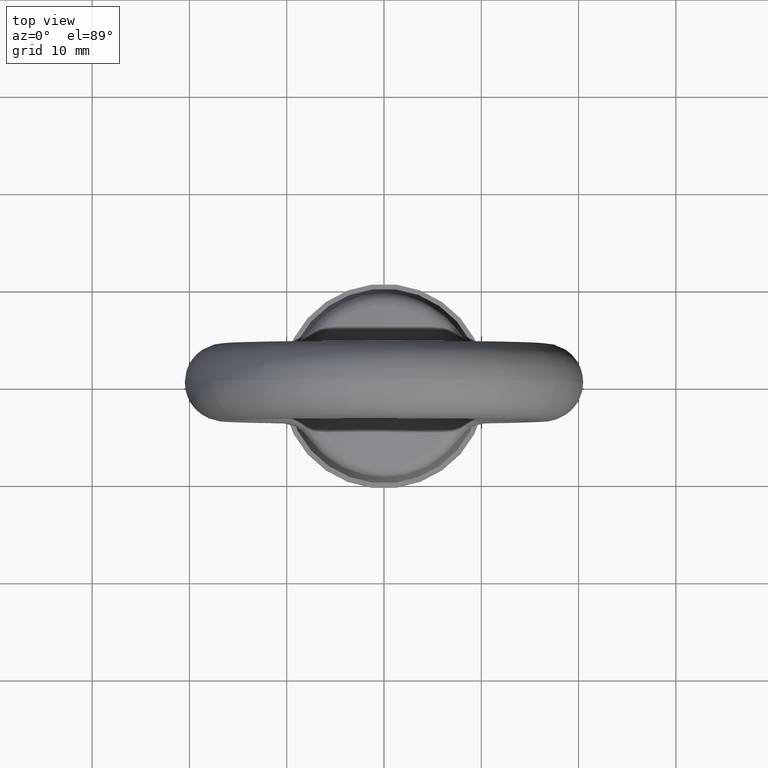
[diagram: clean part render]
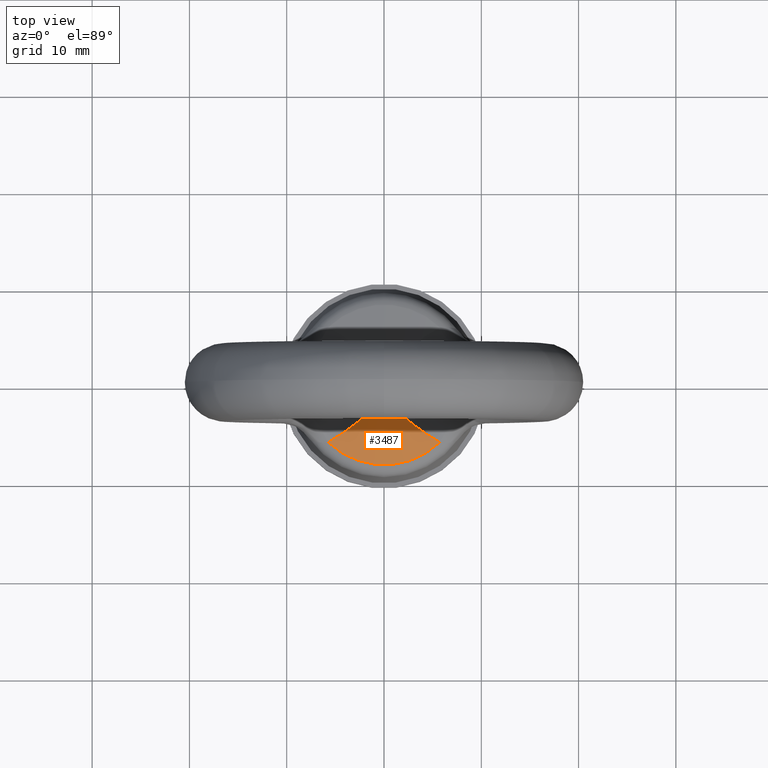
[diagram: same view with one face highlighted and labeled with its STEP entity id]
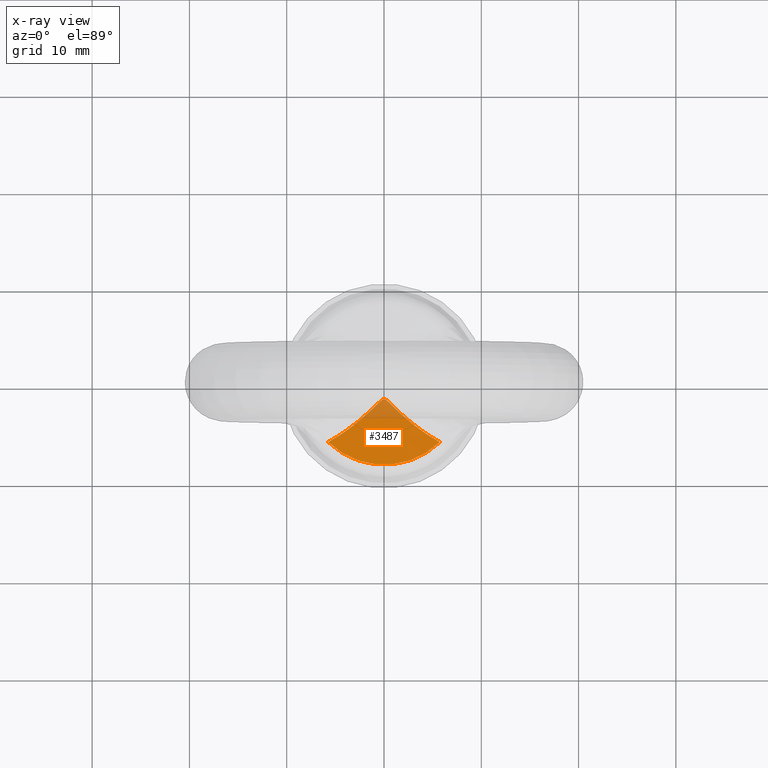
[diagram: x-ray of the same camera — body ghosted, the highlighted face saturated]
A machine part, top view. The second image highlights one B-rep face of the part: STEP entity #3487.
The next image is the same camera in x-ray: the body ghosted, the highlighted face saturated — about 11% of this face is hidden behind the body in this view.
In plain terms, the highlighted conical surface has half-angle 80.922 deg.
Its self-contained STEP definition (entity closure, byte-faithful):
#2501 = DIRECTION ( 'NONE',  ( 1.000000000000000000, 0.0000000000000000000, 0.0000000000000000000 ) ) ;
#2502 = DIRECTION ( 'NONE',  ( 0.0000000000000000000, 0.0000000000000000000, 1.000000000000000000 ) ) ;
#2503 = CARTESIAN_POINT ( 'NONE',  ( 0.0000000000000000000, 0.0000000000000000000, -13.81535031278956000 ) ) ;
#2504 = AXIS2_PLACEMENT_3D ( 'NONE', #2503, #2502, #2501 ) ;
#2505 = CIRCLE ( 'NONE', #2504, 8.231947182446498700 ) ;
#2620 = CARTESIAN_POINT ( 'NONE',  ( 5.738277239094090400, -5.902298598163569400, -13.81535031278956000 ) ) ;
#2621 = CARTESIAN_POINT ( 'NONE',  ( -5.738277239094090400, -5.902298598163569400, -13.81535031278956000 ) ) ;
#3341 = EDGE_LOOP ( 'NONE', ( #3342, #3488 ) ) ;
#3342 = ORIENTED_EDGE ( 'NONE', *, *, #3343, .T. ) ;
#3343 = EDGE_CURVE ( 'NONE', #3344, #3345, #2505, .T. ) ;
#3344 = VERTEX_POINT ( 'NONE', #2621 ) ;
#3345 = VERTEX_POINT ( 'NONE', #2620 ) ;
#3487 = ADVANCED_FACE ( 'NONE', ( #5654 ), #5636, .T. ) ;
#3488 = ORIENTED_EDGE ( 'NONE', *, *, #3489, .T. ) ;
#3489 = EDGE_CURVE ( 'NONE', #3345, #3344, #5980, .T. ) ;
#5615 = DIRECTION ( 'NONE',  ( -1.000000000000000000, 0.0000000000000000000, 0.0000000000000000000 ) ) ;
#5634 = DIRECTION ( 'NONE',  ( 0.0000000000000000000, 0.0000000000000000000, -1.000000000000000000 ) ) ;
#5635 = AXIS2_PLACEMENT_3D ( 'NONE', #5655, #5634, #5615 ) ;
#5636 = CONICAL_SURFACE ( 'NONE', #5635, 6258.368666053985200, 1.412349682501745000 ) ;
#5654 = FACE_OUTER_BOUND ( 'NONE', #3341, .T. ) ;
#5655 = CARTESIAN_POINT ( 'NONE',  ( 0.0000000000000000000, 0.0000000000000000000, -1012.500000000000000 ) ) ;
#5980 = B_SPLINE_CURVE_WITH_KNOTS ( 'NONE', 3,
 ( #6065, #6064, #6063, #6062, #6061, #6021, #6020, #6019, #6018, #6017, #6016, #6015, #6014, #6013, #6012, #6011, #6010, #6009, #6008, #6007, #6006, #6005, #6134, #6133, #6132, #6131 ),
 .UNSPECIFIED., .F., .F.,
 ( 4, 2, 2, 2, 2, 2, 2, 2, 2, 2, 2, 2, 4 ),
 ( 5.553824967135426600E-018, 0.003665937879873416900, 0.005498906819810123000, 0.006415391289778475800, 0.006873633524762652300, 0.007102754642254740900, 0.007331875759746829500, 0.007560996877238918200, 0.007790117994731006800, 0.008248360229715182400, 0.009164844699683536900, 0.01099781363962024600, 0.01466375151949366100 ),
 .UNSPECIFIED. ) ;
#6005 = CARTESIAN_POINT ( 'NONE',  ( -1.817720432750634400, -3.092953069939405000, -13.07236238620128600 ) ) ;
#6006 = CARTESIAN_POINT ( 'NONE',  ( -1.160207930479036700, -2.466916878499904300, -12.93530845962066100 ) ) ;
#6007 = CARTESIAN_POINT ( 'NONE',  ( -0.9454363134816450300, -2.253328097658793700, -12.88989826007391800 ) ) ;
#6008 = CARTESIAN_POINT ( 'NONE',  ( -0.6224659932115590400, -1.933326592552556000, -12.82436710738610800 ) ) ;
#6009 = CARTESIAN_POINT ( 'NONE',  ( -0.5150343746159208300, -1.826057545424057300, -12.80283803742739400 ) ) ;
#6010 = CARTESIAN_POINT ( 'NONE',  ( -0.3449311486669425200, -1.675477029624106400, -12.77324246876458100 ) ) ;
#6011 = CARTESIAN_POINT ( 'NONE',  ( -0.2868835391719343200, -1.626823923258704300, -12.76379378469511700 ) ) ;
#6012 = CARTESIAN_POINT ( 'NONE',  ( -0.1587060202744221000, -1.543511105412948900, -12.74776055123440000 ) ) ;
#6013 = CARTESIAN_POINT ( 'NONE',  ( -0.08672953230126009800, -1.508454638517289000, -12.74110409679677000 ) ) ;
#6014 = CARTESIAN_POINT ( 'NONE',  ( 0.06979698234040612700, -1.503803099337577300, -12.74022026886010100 ) ) ;
#6015 = CARTESIAN_POINT ( 'NONE',  ( 0.1445359932094381300, -1.536263697218036800, -12.74637733999787100 ) ) ;
#6016 = CARTESIAN_POINT ( 'NONE',  ( 0.2742604400446726500, -1.617020501196122300, -12.76189782829038700 ) ) ;
#6017 = CARTESIAN_POINT ( 'NONE',  ( 0.3328159415219253400, -1.665343332043697200, -12.77126674691851500 ) ) ;
#6018 = CARTESIAN_POINT ( 'NONE',  ( 0.5042937344176659000, -1.815529910741221500, -12.80074138545900400 ) ) ;
#6019 = CARTESIAN_POINT ( 'NONE',  ( 0.6121922362219246500, -1.923217171641452300, -12.82232379250108100 ) ) ;
#6020 = CARTESIAN_POINT ( 'NONE',  ( 0.9362879096101236500, -2.244132979965468800, -12.88796492309478100 ) ) ;
#6021 = CARTESIAN_POINT ( 'NONE',  ( 1.151571205808485700, -2.458511664539456900, -12.93350174596855100 ) ) ;
#6061 = CARTESIAN_POINT ( 'NONE',  ( 1.811178315761674100, -3.087078342972995800, -13.07101127879797700 ) ) ;
#6062 = CARTESIAN_POINT ( 'NONE',  ( 2.266615808705893200, -3.490025628042442700, -13.16443501885485500 ) ) ;
#6063 = CARTESIAN_POINT ( 'NONE',  ( 3.674541215850311900, -4.635633335177375100, -13.44375532908876100 ) ) ;
#6064 = CARTESIAN_POINT ( 'NONE',  ( 4.669381125078205100, -5.320760455316565700, -13.62966899812800600 ) ) ;
#6065 = CARTESIAN_POINT ( 'NONE',  ( 5.738277239094090400, -5.902298598163569400, -13.81535031278956000 ) ) ;
#6131 = CARTESIAN_POINT ( 'NONE',  ( -5.738277239094090400, -5.902298598163569400, -13.81535031278956000 ) ) ;
#6132 = CARTESIAN_POINT ( 'NONE',  ( -4.673511963967508000, -5.323007858356579200, -13.63038657917780600 ) ) ;
#6133 = CARTESIAN_POINT ( 'NONE',  ( -3.679773617606466400, -4.639459339662876000, -13.44475520329474000 ) ) ;
#6134 = CARTESIAN_POINT ( 'NONE',  ( -2.271114355319336000, -3.493900158111249000, -13.16534644226088200 ) ) ;